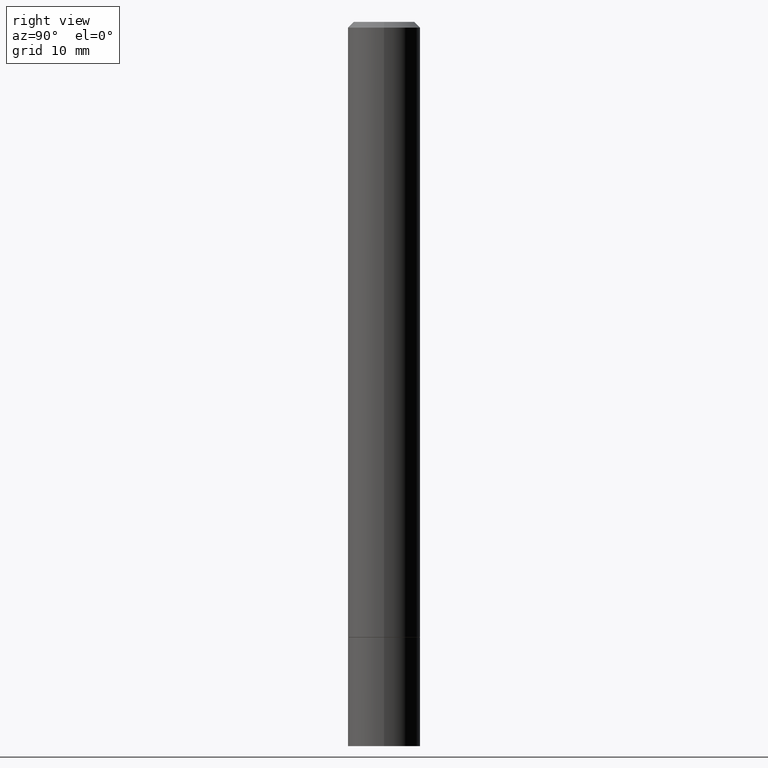
[diagram: clean part render]
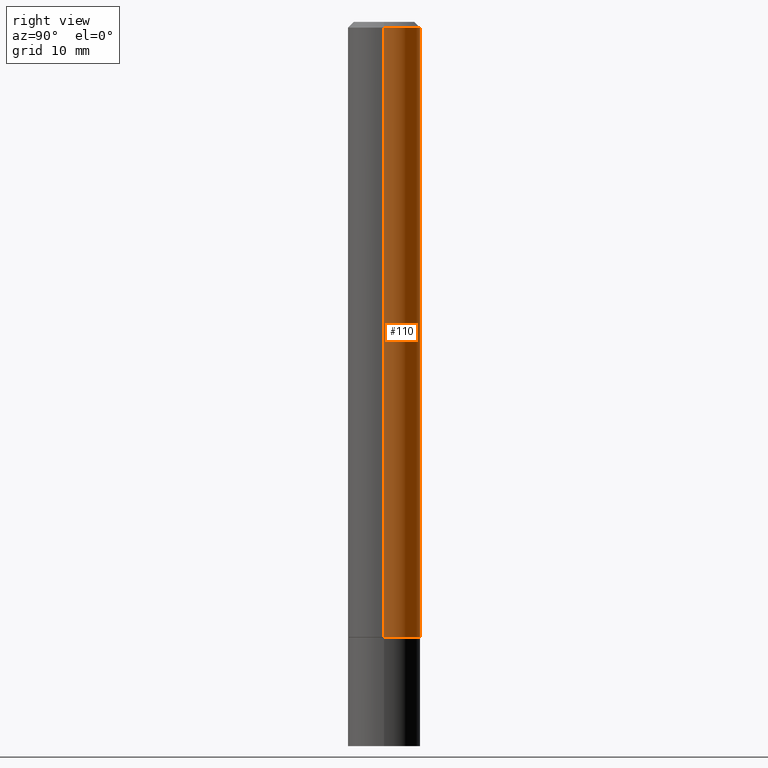
[diagram: same view with one face highlighted and labeled with its STEP entity id]
A machine part, right view. The second image highlights one B-rep face of the part: STEP entity #110.
In plain terms, the highlighted cylindrical surface (edge-blend (fillet) strip) has radius 3.175 mm, axis along (-0, 0, 1).
Its self-contained STEP definition (entity closure, byte-faithful):
#2 = EDGE_CURVE ( 'NONE', #270, #155, #89, .T. ) ;
#9 = LINE ( 'NONE', #88, #52 ) ;
#13 = LINE ( 'NONE', #248, #205 ) ;
#17 = DIRECTION ( 'NONE',  ( 1.000000000000000000, -6.982962677686270655E-15, 0.000000000000000000 ) ) ;
#22 = VERTEX_POINT ( 'NONE', #55 ) ;
#25 = AXIS2_PLACEMENT_3D ( 'NONE', #342, #340, #86 ) ;
#28 = ORIENTED_EDGE ( 'NONE', *, *, #179, .T. ) ;
#30 = DIRECTION ( 'NONE',  ( 1.000000000000000000, -6.982962677686266711E-15, 4.876176775795935793E-29 ) ) ;
#39 = CARTESIAN_POINT ( 'NONE',  ( -0.1249999999999997224, 8.030407079339183643E-16, -0.02000000000000003511 ) ) ;
#52 = VECTOR ( 'NONE', #112, 39.37007874015748143 ) ;
#53 = VERTEX_POINT ( 'NONE', #347 ) ;
#55 = CARTESIAN_POINT ( 'NONE',  ( 0.1250000000000000000, -8.288776698413625533E-15, -2.124000000000000110 ) ) ;
#63 = DIRECTION ( 'NONE',  ( -2.445468806185136597E-29, 3.491481338843145583E-15, 1.000000000000000000 ) ) ;
#81 = EDGE_CURVE ( 'NONE', #53, #155, #9, .T. ) ;
#86 = DIRECTION ( 'NONE',  ( 1.000000000000000000, -6.982962677686266711E-15, 0.000000000000000000 ) ) ;
#88 = CARTESIAN_POINT ( 'NONE',  ( -0.1249999999999998612, 8.881784197001242463E-16, -6.148668862818625221E-30 ) ) ;
#89 = CIRCLE ( 'NONE', #25, 0.1249999999999997224 ) ;
#103 = ORIENTED_EDGE ( 'NONE', *, *, #81, .T. ) ;
#110 = ADVANCED_FACE ( 'NONE', ( #164 ), #280, .T. ) ;
#112 = DIRECTION ( 'NONE',  ( -2.445468806185136877E-29, 3.491481338843145188E-15, 1.000000000000000000 ) ) ;
#120 = AXIS2_PLACEMENT_3D ( 'NONE', #254, #283, #30 ) ;
#133 = ORIENTED_EDGE ( 'NONE', *, *, #2, .F. ) ;
#155 = VERTEX_POINT ( 'NONE', #39 ) ;
#164 = FACE_OUTER_BOUND ( 'NONE', #244, .T. ) ;
#179 = EDGE_CURVE ( 'NONE', #22, #53, #344, .T. ) ;
#205 = VECTOR ( 'NONE', #219, 39.37007874015748143 ) ;
#208 = CARTESIAN_POINT ( 'NONE',  ( 0.1249999999999997224, -9.273918764983025741E-16, -0.02000000000000003511 ) ) ;
#219 = DIRECTION ( 'NONE',  ( -2.445468806185136877E-29, 3.491481338843145188E-15, 1.000000000000000000 ) ) ;
#221 = ORIENTED_EDGE ( 'NONE', *, *, #297, .F. ) ;
#229 = AXIS2_PLACEMENT_3D ( 'NONE', #262, #63, #17 ) ;
#244 = EDGE_LOOP ( 'NONE', ( #28, #103, #133, #221 ) ) ;
#248 = CARTESIAN_POINT ( 'NONE',  ( 0.1249999999999998612, -8.728703347107823527E-16, 6.095220969744912735E-30 ) ) ;
#254 = CARTESIAN_POINT ( 'NONE',  ( 0.000000000000000000, 0.000000000000000000, 0.000000000000000000 ) ) ;
#262 = CARTESIAN_POINT ( 'NONE',  ( 5.194175744337230786E-29, -7.415906363702842194E-15, -2.124000000000000110 ) ) ;
#270 = VERTEX_POINT ( 'NONE', #208 ) ;
#280 = CYLINDRICAL_SURFACE ( 'NONE', #120, 0.1249999999999998612 ) ;
#283 = DIRECTION ( 'NONE',  ( -2.445468806185136597E-29, 3.491481338843145583E-15, 1.000000000000000000 ) ) ;
#297 = EDGE_CURVE ( 'NONE', #22, #270, #13, .T. ) ;
#340 = DIRECTION ( 'NONE',  ( -2.445468806185136597E-29, 3.491481338843145583E-15, 1.000000000000000000 ) ) ;
#342 = CARTESIAN_POINT ( 'NONE',  ( 4.890937612370281041E-31, -6.982962677686302702E-17, -0.02000000000000003511 ) ) ;
#344 = CIRCLE ( 'NONE', #229, 0.1250000000000000000 ) ;
#347 = CARTESIAN_POINT ( 'NONE',  ( -0.1250000000000000000, -2.854689575539722781E-15, -2.124000000000000110 ) ) ;